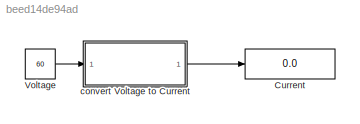
MODEL slx_beed14de94ad
KIND model
CONFIG AbsTol = auto
CONFIG EnableMultiTasking = off
CONFIG FixedStep = auto
CONFIG MaxStep = auto
CONFIG MinStep = auto
CONFIG RelTol = 1e-3
CONFIG SampleTimeConstraint = Unconstrained
CONFIG SolverName = VariableStepAuto
CONFIG StartTime = 0.0
CONFIG StopTime = 10.0
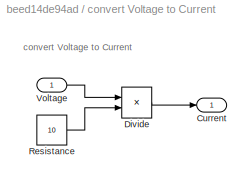
BLOCK [SubSystem]  convert Voltage to Current
  Ports = [1, 1]
  RequestExecContextInheritance = off
BLOCK [Outport]  convert Voltage to Current/Current
BLOCK [Product]  convert Voltage to Current/Divide
  Inputs = */
  Ports = [2, 1]
BLOCK [Constant]  convert Voltage to Current/Resistance
  Value = 10
BLOCK [Inport]  convert Voltage to Current/Voltage
BLOCK [Display] Current
  Decimation = 1
  Ports = [1]
BLOCK [Constant] Voltage
  Value = 60
ANNOTATION  convert Voltage to Current: convert Voltage to Current
LINE  convert Voltage to Current/Divide:1 ->  convert Voltage to Current/Current:1
LINE  convert Voltage to Current/Resistance:1 ->  convert Voltage to Current/Divide:2
LINE  convert Voltage to Current/Voltage:1 ->  convert Voltage to Current/Divide:1
LINE  convert Voltage to Current:1 -> Current:1
LINE Voltage:1 ->  convert Voltage to Current:1
